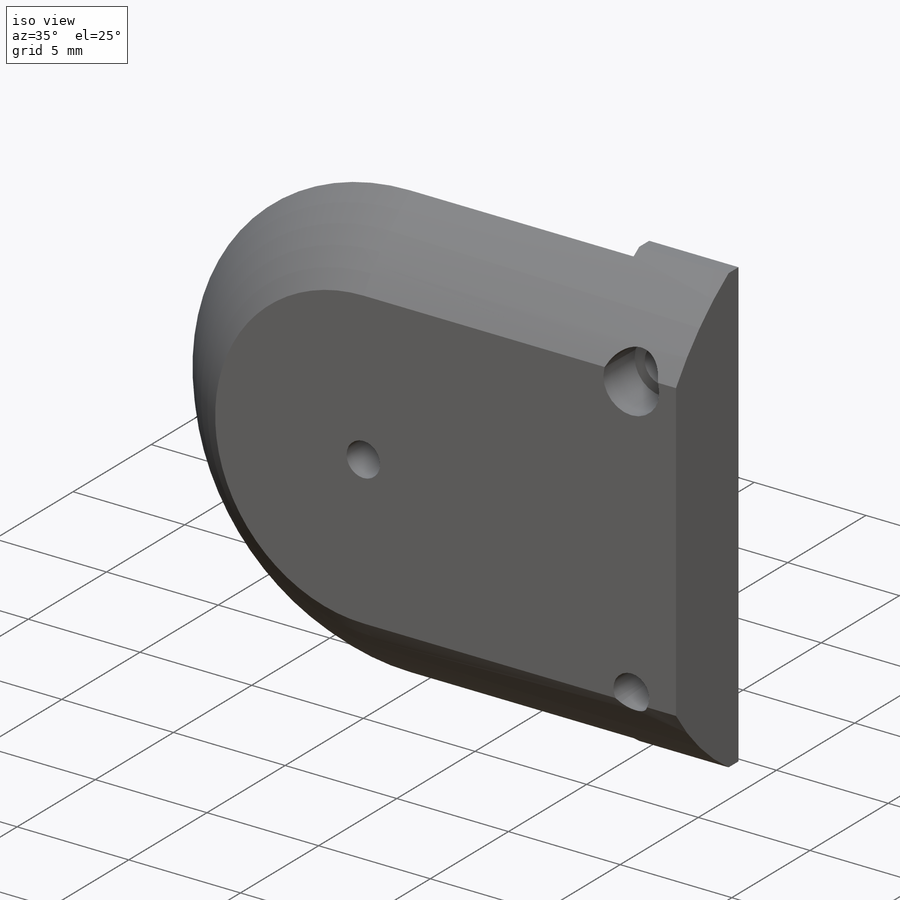
[diagram: iso view]
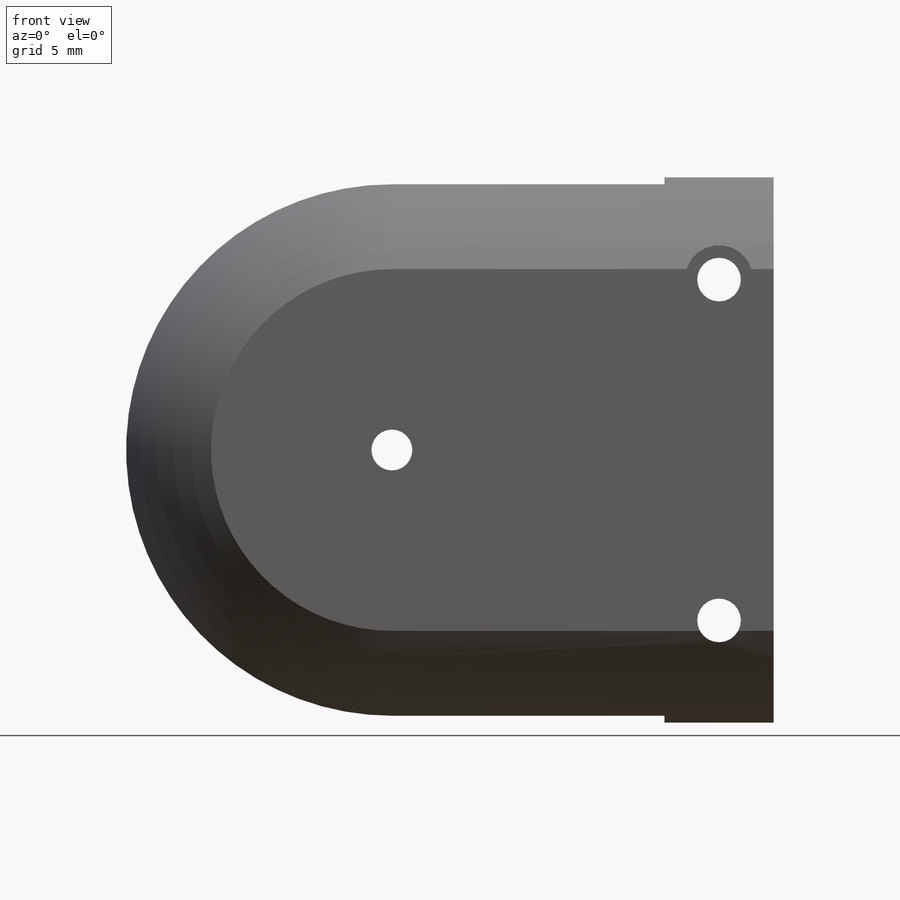
[diagram: front view]
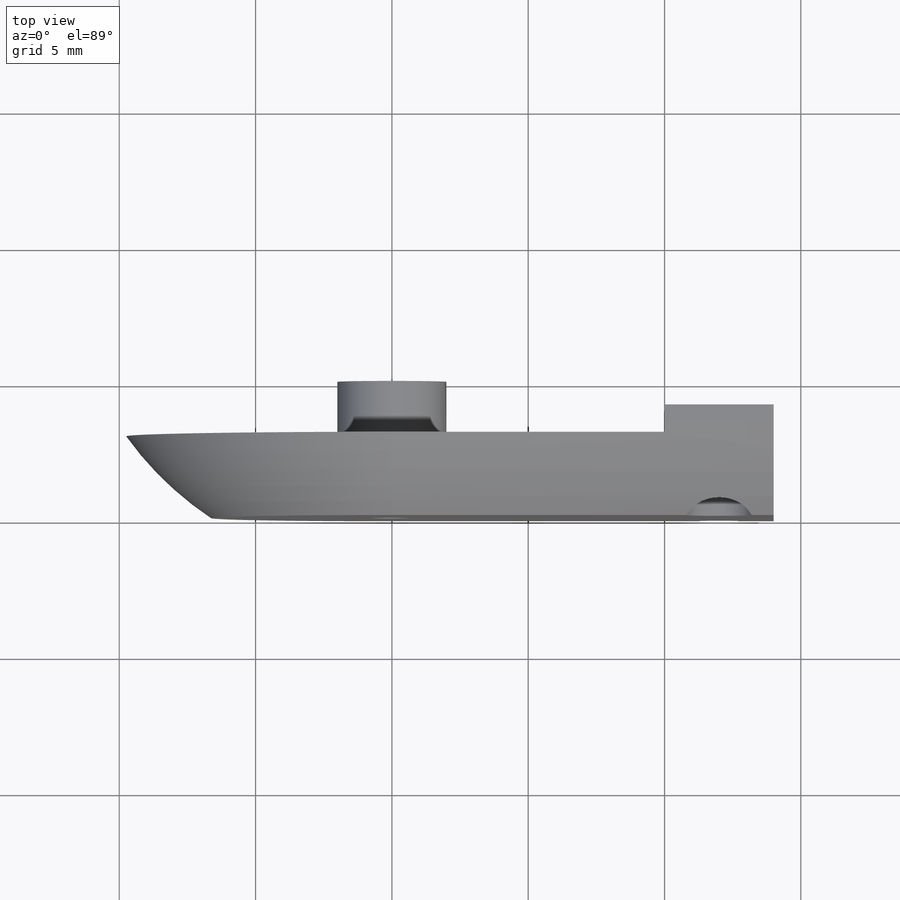
[diagram: top view]
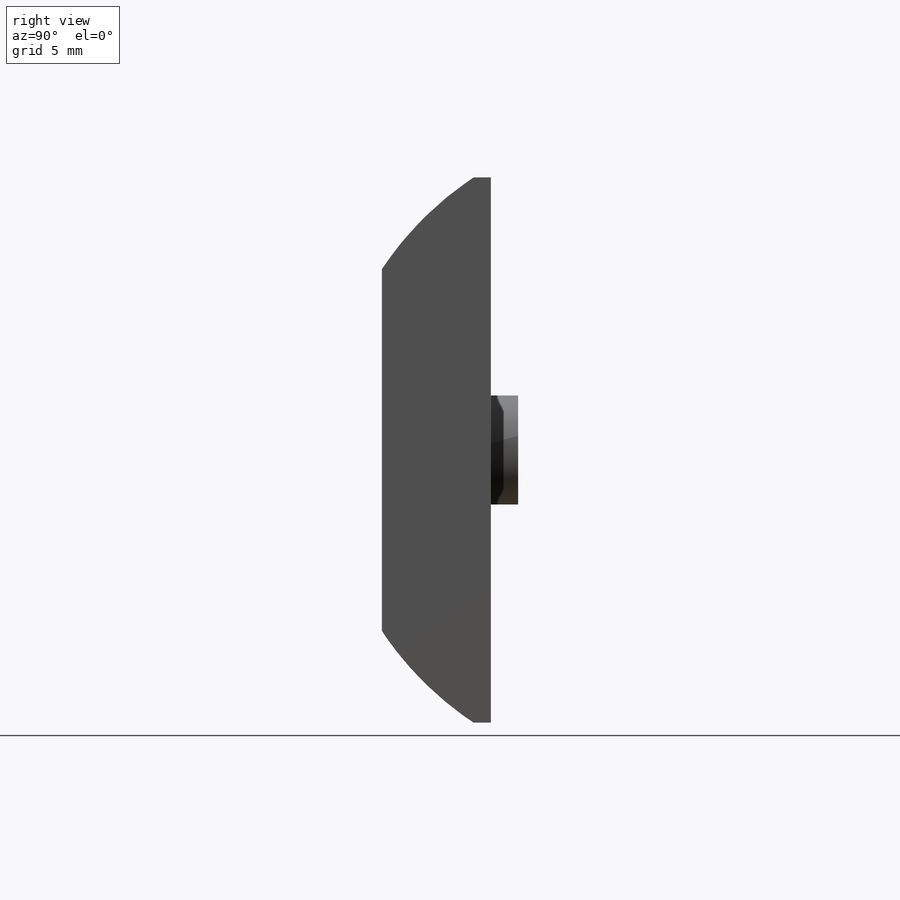
[diagram: right view]
SOLIDWORKS PART (.sldprt)
format: sldprt  version: not decoded by parser v0  size: 211,456 bytes
history: native  units: mm
features: sketch x8, cut_extrude x5, extrude x2, material x1, cut_revolve x1 (+14 scaffold rows collapsed; 1 parser-record rows omitted)
feature tree (32):
  scaffold x14  (default folders/planes/origin — collapsed)
  material  "Material <not specified>"
  sketch  "Sketch1"  dims[D1=~42.300253mm]
  extrude  "Boss-Extrude1"  Depth=4mm
  sketch  "Sketch2"  dims[D1=10.0mm]
  cut_extrude  "Body Hole"  Depth=2mm
  sketch  "Sketch11"  dims[D1=4.0mm]
  extrude  "Boss-Extrude2"  Depth=2mm
  sketch  "Sketch4"  dims[D1=2.75mm]
  cut_extrude  "Cut-Extrude2"  [1 undecoded]
  parser-record x1  (decoder bookkeeping rows leaked as tree rows — omitted from the tree; the rows remain in map.json)
  sketch  "Sketch3"  dims[D1=6.25mm]
  cut_extrude  "Screw Holes"  [1 undecoded]
  sketch  "Sketch6"  dims[D1=2.5mm]
  cut_extrude  "Screw Heads"  Depth=2mm
  sketch  "Sketch9"  dims[D1=~0.879249mm]
  cut_revolve  "Cut-Revolve1"  Angle=180deg
  sketch  "Sketch10"  dims[D1=~2.471024mm]
  cut_extrude  "Cut-Extrude1"  [1 undecoded]
decode coverage: 13 of 16 modeling features carry decoded parameters
note: ~ marks probable driven/reference dimensions
note: 3 parameter values undecoded
summary: no parameter record found for 3 features
note: suppression state not decoded; provenance and decode notes live in map.json
